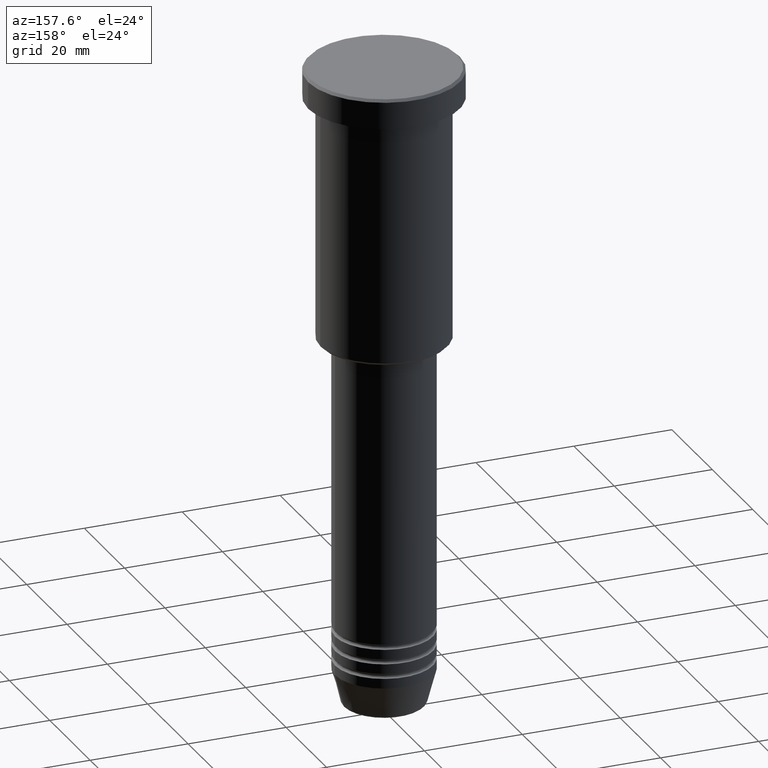
[diagram: clean part render]
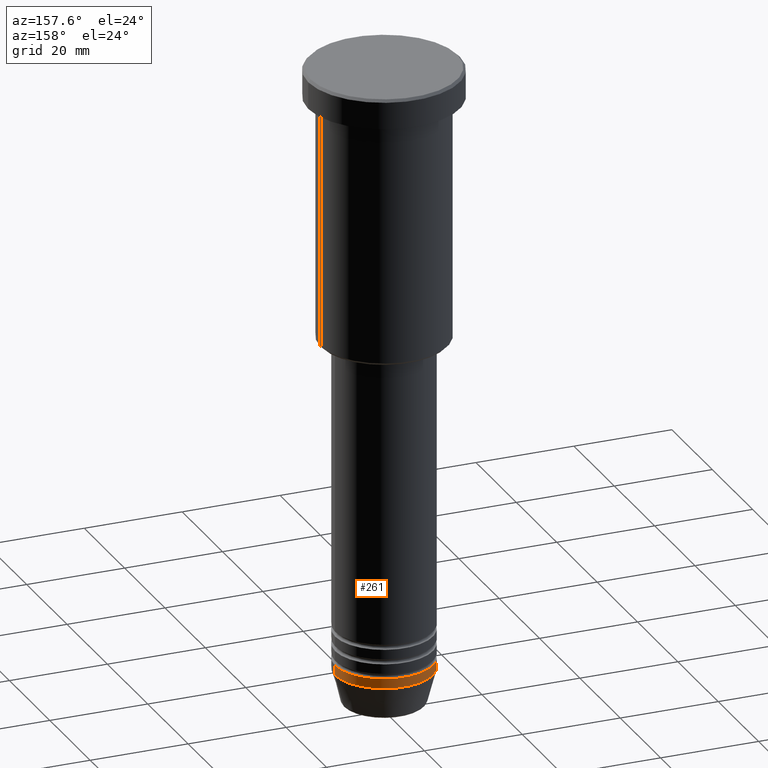
[diagram: same view with one face highlighted and labeled with its STEP entity id]
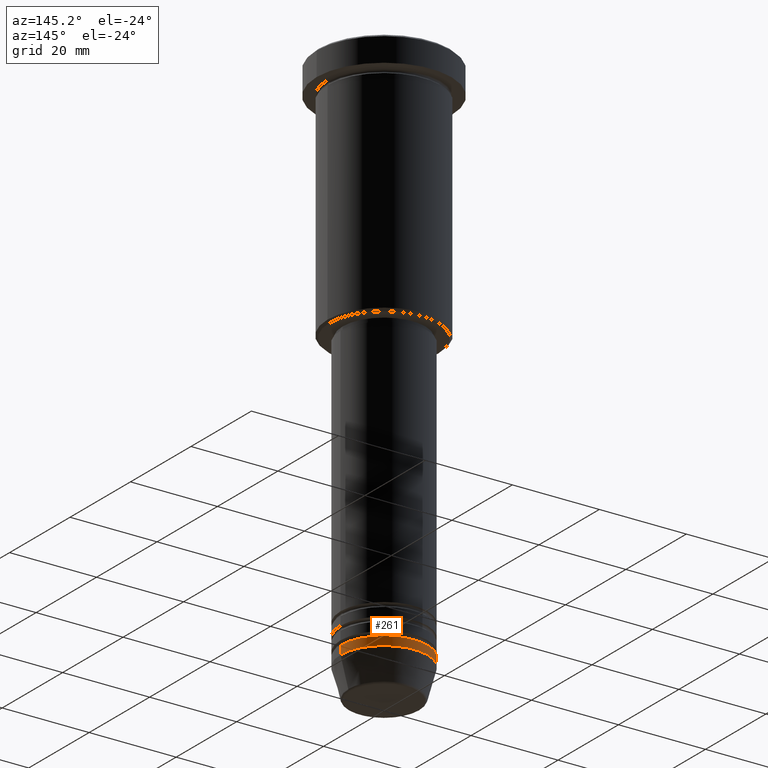
[diagram: same view with one face highlighted and labeled with its STEP entity id]
A machine part, auxiliary view. The second image highlights one B-rep face of the part: STEP entity #261.
A second angle (auxiliary view) of the same face is appended — the face is thin or edge-on in the first view.
In plain terms, the highlighted cylindrical surface (partial cylindrical patch) has radius 10 mm, axis along (-0, -0, 1).
Its self-contained STEP definition (entity closure, byte-faithful):
#155 = ORIENTED_EDGE ( 'NONE', *, *, #864, .F. ) ;
#184 = VERTEX_POINT ( 'NONE', #931 ) ;
#221 = VERTEX_POINT ( 'NONE', #556 ) ;
#246 = DIRECTION ( 'NONE',  ( 1.000000000000000000, 0.000000000000000000, 0.000000000000000000 ) ) ;
#256 = CYLINDRICAL_SURFACE ( 'NONE', #820, 10.00000000000000000 ) ;
#261 = ADVANCED_FACE ( 'NONE', ( #1083 ), #256, .T. ) ;
#277 = CARTESIAN_POINT ( 'NONE',  ( 10.00000000000000000, 0.000000000000000000, -122.0000000000000000 ) ) ;
#287 = VECTOR ( 'NONE', #449, 1000.000000000000000 ) ;
#327 = CIRCLE ( 'NONE', #553, 10.00000000000000000 ) ;
#340 = CARTESIAN_POINT ( 'NONE',  ( 0.000000000000000000, 0.000000000000000000, -124.0000000000000000 ) ) ;
#449 = DIRECTION ( 'NONE',  ( -0.000000000000000000, -0.000000000000000000, 1.000000000000000000 ) ) ;
#474 = EDGE_LOOP ( 'NONE', ( #597, #756, #1175, #155 ) ) ;
#489 = CARTESIAN_POINT ( 'NONE',  ( -10.00000000000000000, 1.224646799147353256E-15, -124.0000000000000000 ) ) ;
#541 = CARTESIAN_POINT ( 'NONE',  ( 10.00000000000000000, 0.000000000000000000, 0.000000000000000000 ) ) ;
#548 = DIRECTION ( 'NONE',  ( -0.000000000000000000, -0.000000000000000000, 1.000000000000000000 ) ) ;
#553 = AXIS2_PLACEMENT_3D ( 'NONE', #340, #1163, #246 ) ;
#556 = CARTESIAN_POINT ( 'NONE',  ( 10.00000000000000000, 0.000000000000000000, -124.0000000000000000 ) ) ;
#597 = ORIENTED_EDGE ( 'NONE', *, *, #724, .T. ) ;
#629 = DIRECTION ( 'NONE',  ( 1.000000000000000000, 0.000000000000000000, 0.000000000000000000 ) ) ;
#678 = DIRECTION ( 'NONE',  ( -0.000000000000000000, -0.000000000000000000, 1.000000000000000000 ) ) ;
#724 = EDGE_CURVE ( 'NONE', #221, #1037, #327, .T. ) ;
#752 = DIRECTION ( 'NONE',  ( -0.000000000000000000, -0.000000000000000000, 1.000000000000000000 ) ) ;
#756 = ORIENTED_EDGE ( 'NONE', *, *, #799, .T. ) ;
#763 = CARTESIAN_POINT ( 'NONE',  ( 0.000000000000000000, 0.000000000000000000, -122.0000000000000000 ) ) ;
#765 = VECTOR ( 'NONE', #548, 1000.000000000000000 ) ;
#799 = EDGE_CURVE ( 'NONE', #1037, #184, #892, .T. ) ;
#820 = AXIS2_PLACEMENT_3D ( 'NONE', #1029, #752, #629 ) ;
#836 = CARTESIAN_POINT ( 'NONE',  ( -10.00000000000000000, 1.224646799147353256E-15, 0.000000000000000000 ) ) ;
#864 = EDGE_CURVE ( 'NONE', #221, #1144, #913, .T. ) ;
#892 = LINE ( 'NONE', #836, #765 ) ;
#908 = CIRCLE ( 'NONE', #967, 10.00000000000000000 ) ;
#913 = LINE ( 'NONE', #541, #287 ) ;
#931 = CARTESIAN_POINT ( 'NONE',  ( -10.00000000000000000, 1.224646799147353256E-15, -122.0000000000000000 ) ) ;
#967 = AXIS2_PLACEMENT_3D ( 'NONE', #763, #678, #1067 ) ;
#1029 = CARTESIAN_POINT ( 'NONE',  ( 0.000000000000000000, 0.000000000000000000, 0.000000000000000000 ) ) ;
#1037 = VERTEX_POINT ( 'NONE', #489 ) ;
#1067 = DIRECTION ( 'NONE',  ( 1.000000000000000000, 0.000000000000000000, 0.000000000000000000 ) ) ;
#1069 = EDGE_CURVE ( 'NONE', #1144, #184, #908, .T. ) ;
#1083 = FACE_OUTER_BOUND ( 'NONE', #474, .T. ) ;
#1144 = VERTEX_POINT ( 'NONE', #277 ) ;
#1163 = DIRECTION ( 'NONE',  ( -0.000000000000000000, -0.000000000000000000, 1.000000000000000000 ) ) ;
#1175 = ORIENTED_EDGE ( 'NONE', *, *, #1069, .F. ) ;